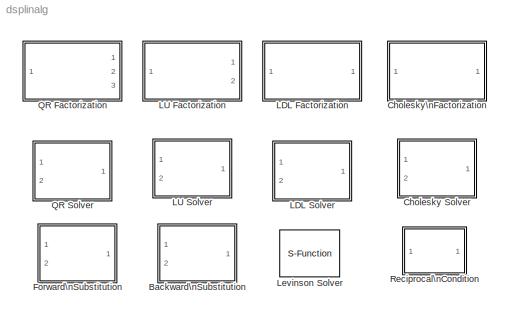
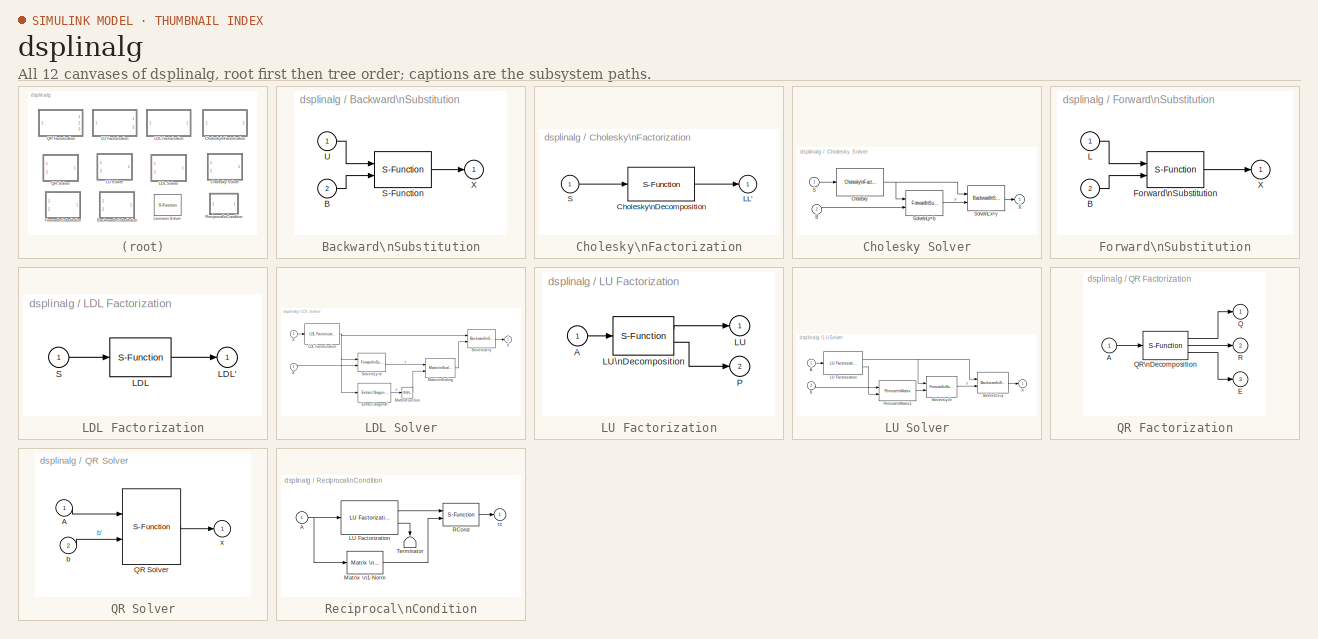
[diagram: thumbnail index - all 12 canvases of the model, root first then tree order]
MODEL dsplinalg
KIND library
BLOCK [SubSystem] Backward\nSubstitution
  MaskDescription = Solve UX=B where U is an upper (or unit-upper) triangular matrix.  U must be square.  B must have the same number of rows as U.
  MaskDisplay = plot(x,y); text(.4,0.9,'U X = B')
  MaskEnableString = on
  MaskHelp = web(dspbhelp);
  MaskIconFrame = on
  MaskIconOpaque = off
  MaskIconRotate = none
  MaskIconUnits = normalized
  MaskInitialization = x=[ 0.45 0.45 0.18 0.45 NaN 0.495 0.585 0.585 0.495 0.495 NaN 0.63 0.675 NaN 0.63 0.675 NaN 0.72 0.81 0.81 0.72 0.72 ];\ny=[ 0.1 0.7 0.7 0.1 NaN 0.1 0.1 0.7 0.7 0.1 NaN 0.35 0.35 NaN 0.45 0.45 NaN 0.1 0.1 0.7 0.7 0.1 ];\n
  MaskPromptString = Force input to be unit-upper triangular
  MaskStyleString = checkbox
  MaskTunableValueString = on
  MaskType = Backward Substitution
  MaskValueString = off
  MaskVariables = unit=@1;
  MaskVisibilityString = on
  Ports = [2, 1, 0, 0, 0]
  ShowPortLabels = on
  TreatAsAtomicUnit = off
BLOCK [Inport] Backward\nSubstitution/B
  Interpolate = on
  Port = 2
BLOCK [S-Function] Backward\nSubstitution/S-Function
  FunctionName = sdspbsub
  Parameters = unit
  PortCounts = []
  Ports = [2, 1, 0, 0, 0]
BLOCK [Inport] Backward\nSubstitution/U
  Interpolate = on
  Port = 1
BLOCK [Outport] Backward\nSubstitution/X
  InitialOutput = 0
  OutputWhenDisabled = held
  Port = 1
BLOCK [SubSystem] Cholesky Solver
  MaskDescription = Solve SX=B using Cholesky factorization.  S must be a square, symmetric (Hermitian) positive definite matrix.  B must have the same number of rows as S.
  MaskDisplay = plot(x,y);\ntext(.17,0.9,'SX=B (Chol)')
  MaskEnableString = on
  MaskHelp = web(dspbhelp);
  MaskIconFrame = on
  MaskIconOpaque = off
  MaskIconRotate = none
  MaskIconUnits = normalized
  MaskInitialization = x=[ 0.135 0.475 .475 0.135 0.135 NaN .135 .475 NaN 0.55 0.64 0.64 0.55 0.55 NaN 0.685 0.73 NaN 0.685 0.73 NaN 0.775 0.865 0.865 0.775 0.775 ];\ny=[ 0.1 0.1 0.7 0.7 .1 NaN .7 .1 NaN 0.1 0.1 0.7 0.7 0.1 NaN 0.35 0.35 NaN 0.45 0.45 NaN 0.1 0.1 0.7 0.7 0.1 ];\nset_param([gcb '/Cholesky'],'errmode',errmode);\n\n
  MaskPromptString = Invalid input matrix:
  MaskSelfModifiable = on
  MaskStyleString = popup(Ignore|Warning|Error)
  MaskTunableValueString = on
  MaskType = Cholesky Solver
  MaskValueString = Warning
  MaskVariables = errmode=&1;
  MaskVisibilityString = on
  Ports = [2, 1, 0, 0, 0]
  ShowPortLabels = on
  TreatAsAtomicUnit = off
BLOCK [Inport] Cholesky Solver/B
  Interpolate = on
  Port = 2
BLOCK [Reference] Cholesky Solver/Cholesky  REF=dsplinalg/Cholesky\nFactorization
  Ports = [1, 1, 0, 0, 0]
  SourceBlock = dsplinalg/Cholesky\nFactorization
  SourceType = Cholesky Factorization
  errmode = Warning
BLOCK [Inport] Cholesky Solver/S
  Interpolate = on
  Port = 1
BLOCK [Reference] Cholesky Solver/Solve\nL'x=y  REF=dsplinalg/Backward\nSubstitution
  Ports = [2, 1, 0, 0, 0]
  SourceBlock = dsplinalg/Backward\nSubstitution
  SourceType = Backward Substitution
  unit = off
BLOCK [Reference] Cholesky Solver/Solve\nLy=b  REF=dsplinalg/Forward\nSubstitution
  Ports = [2, 1, 0, 0, 0]
  SourceBlock = dsplinalg/Forward\nSubstitution
  SourceType = Forward Substitution
  unit = off
BLOCK [Outport] Cholesky Solver/X
  InitialOutput = 0
  OutputWhenDisabled = held
  Port = 1
BLOCK [SubSystem] Cholesky\nFactorization
  MaskDescription = Uses only the diagonal and the upper triangle of S.  The lower triangle is assumed to be the (complex conjugate) transpose of the upper.  Only for use with a symmetric (Hermitian) positive definite input matrix S.  Input must be square.
  MaskDisplay = plot(x,y);\ntext(.3,0.9,'S = LL''')
  MaskEnableString = on
  MaskHelp = web(dspbhelp);
  MaskIconFrame = on
  MaskIconOpaque = off
  MaskIconRotate = none
  MaskIconUnits = normalized
  MaskInitialization = x=[0.5336 0.782 0.5336 0.5336 NaN 0.8234 0.575 0.8234 0.8234 NaN 0.1104 0.414 0.414 0.1104 0.1104 NaN 0.1104 0.414 NaN 0.483 0.483 0.437 0.437 0.483 0.483 0.5198 0.483];\ny=[0.142 0.142 0.694 0.142 NaN 0.142 0.694 0.694 0.142 NaN 0.142 0.142 0.694 0.694 0.142 NaN 0.694 0.142 NaN 0.3582 0.395 0.395 0.441 0.441 0.4778 0.418 0.3582];\n
  MaskPromptString = Invalid input matrix:
  MaskStyleString = popup(Ignore|Warning|Error)
  MaskTunableValueString = on
  MaskType = Cholesky Factorization
  MaskValueString = Warning
  MaskVariables = errmode=@1;
  MaskVisibilityString = on
  Ports = [1, 1, 0, 0, 0]
  ShowPortLabels = on
  TreatAsAtomicUnit = off
BLOCK [S-Function] Cholesky\nFactorization/Cholesky\nDecomposition
  FunctionName = sdspchol
  Parameters = errmode
  PortCounts = []
  Ports = [1, 1, 0, 0, 0]
BLOCK [Outport] Cholesky\nFactorization/LL'
  InitialOutput = 0
  OutputWhenDisabled = held
  Port = 1
BLOCK [Inport] Cholesky\nFactorization/S
  Interpolate = on
  Port = 1
BLOCK [SubSystem] Forward\nSubstitution
  MaskDescription = Solve LX=B where L is a lower (or unit-lower) triangular matrix.  L must be square.  B must have the same number of rows as L.
  MaskDisplay = plot(x,y); text(.4,0.9,'L X = B')
  MaskEnableString = on
  MaskHelp = web(dspbhelp);
  MaskIconFrame = on
  MaskIconOpaque = off
  MaskIconRotate = none
  MaskIconUnits = normalized
  MaskInitialization = x=[ 0.18 0.45 0.18 0.18 NaN 0.495 0.585 0.585 0.495 0.495 NaN 0.63 0.675 NaN 0.63 0.675 NaN 0.72 0.81 0.81 0.72 0.72 ];\ny=[ 0.1 0.1 0.7 0.1 NaN 0.1 0.1 0.7 0.7 0.1 NaN 0.35 0.35 NaN 0.45 0.45 NaN 0.1 0.1 0.7 0.7 0.1 ];\n
  MaskPromptString = Force input to be unit-lower triangular
  MaskStyleString = checkbox
  MaskTunableValueString = on
  MaskType = Forward Substitution
  MaskValueString = off
  MaskVariables = unit=@1;
  MaskVisibilityString = on
  Ports = [2, 1, 0, 0, 0]
  ShowPortLabels = on
  TreatAsAtomicUnit = off
BLOCK [Inport] Forward\nSubstitution/B
  Interpolate = on
  Port = 2
BLOCK [S-Function] Forward\nSubstitution/Forward\nSubstitution
  FunctionName = sdspfsub
  Parameters = unit
  PortCounts = []
  Ports = [2, 1, 0, 0, 0]
BLOCK [Inport] Forward\nSubstitution/L
  Interpolate = on
  Port = 1
BLOCK [Outport] Forward\nSubstitution/X
  InitialOutput = 0
  OutputWhenDisabled = held
  Port = 1
BLOCK [SubSystem] LDL Factorization
  MaskDescription = Uses only the diagonal and the upper triangle of S.  Only for use with a symmetric (Hermitian) positive definite input matrix S.  Input must be square.  Stores L (a unit-lower triangle), U (a unit-upper triangle) and D (a diagonal matrix) in the output matrix.
  MaskDisplay = plot(x,y);\ntext(.25,0.9,'S = L D L''')
  MaskHelp = web(dspbhelp);
  MaskIconFrame = on
  MaskIconOpaque = off
  MaskIconRotate = none
  MaskIconUnits = normalized
  MaskInitialization = x=[0.47991 0.64515 0.47991 0.47991 NaN 0.74919 0.58395 0.74919 0.74919 NaN 0.694875 0.52275 NaN 0.1173 0.36975 0.36975 0.1173 0.1173 NaN 0.1173 0.36975 NaN 0.427125 0.427125 0.388875 0.388875 0.427125 0.427125 0.457725 0.427125];\ny=[0.185 0.185 0.695 0.185 NaN 0.185 0.695 0.695 0.185 NaN 0.185 0.695 NaN 0.185 0.185 0.695 0.695 0.185 NaN 0.695 0.185 NaN 0.38475 0.41875 0.41875 0.46125 0.46125 0.49...<+22ch>
  MaskType = LDL Factorization
  Ports = [1, 1, 0, 0, 0]
  ShowPortLabels = on
  TreatAsAtomicUnit = off
BLOCK [S-Function] LDL Factorization/LDL
  FunctionName = sdspldl
  PortCounts = []
  Ports = [1, 1, 0, 0, 0]
BLOCK [Outport] LDL Factorization/LDL'
  InitialOutput = 0
  OutputWhenDisabled = held
  Port = 1
BLOCK [Inport] LDL Factorization/S
  Interpolate = on
  Port = 1
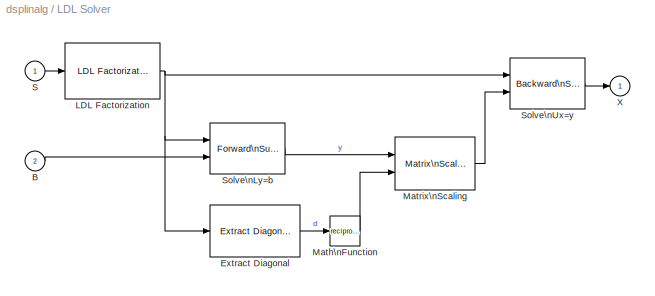
BLOCK [SubSystem] LDL Solver
  MaskDescription = Solve Sx=b using LDL' factorization.  Only for use with a symmetric (Hermitian) positive definite input matrix S.  Input must be square.
  MaskDisplay = plot(x,y);\ntext(.25,0.9,'Sx=b (LDL'')')
  MaskHelp = web(dspbhelp);
  MaskIconFrame = on
  MaskIconOpaque = off
  MaskIconRotate = none
  MaskIconUnits = normalized
  MaskInitialization = Bcols=1;\nx=[ 0.135 0.475 .475 0.135 0.135 NaN .135 .475 NaN 0.55 0.64 0.64 0.55 0.55 NaN 0.685 0.73 NaN 0.685 0.73 NaN 0.775 0.865 0.865 0.775 0.775 ];\ny=[ 0.1 0.1 0.7 0.7 0.1 NaN .7 .1 NaN 0.1 0.1 0.7 0.7 0.1 NaN 0.35 0.35 NaN 0.45 0.45 NaN 0.1 0.1 0.7 0.7 0.1 ];\n
  MaskType = LDL Solver
  Ports = [2, 1, 0, 0, 0]
  ShowPortLabels = on
  TreatAsAtomicUnit = off
BLOCK [Inport] LDL Solver/B
  Interpolate = on
  Port = 2
BLOCK [Reference] LDL Solver/Extract Diagonal  REF=dspmtrx2/Extract Diagonal
  Ports = [1, 1, 0, 0, 0]
  SourceBlock = dspmtrx2/Extract Diagonal
  SourceType = Extract Diagonal
  ncols = -1
BLOCK [Reference] LDL Solver/LDL Factorization  REF=dsplinalg/LDL Factorization
  Ports = [1, 1, 0, 0, 0]
  SourceBlock = dsplinalg/LDL Factorization
  SourceType = LDL Factorization
BLOCK [Math] LDL Solver/Math\nFunction
  Operator = reciprocal
  OutputSignalType = auto
  Ports = [1, 1, 0, 0, 0]
BLOCK [Reference] LDL Solver/Matrix\nScaling  REF=dspmtrx2/Matrix\nScaling
  Ports = [2, 1, 0, 0, 0]
  SourceBlock = dspmtrx2/Matrix\nScaling
  SourceType = Matrix Scaling
  cols = Bcols
  mode = Scale Rows (D*A)
BLOCK [Inport] LDL Solver/S
  Interpolate = on
  Port = 1
BLOCK [Reference] LDL Solver/Solve\nLy=b  REF=dsplinalg/Forward\nSubstitution
  Ports = [2, 1, 0, 0, 0]
  SourceBlock = dsplinalg/Forward\nSubstitution
  SourceType = Forward Substitution
  unit = on
BLOCK [Reference] LDL Solver/Solve\nUx=y  REF=dsplinalg/Backward\nSubstitution
  Ports = [2, 1, 0, 0, 0]
  SourceBlock = dsplinalg/Backward\nSubstitution
  SourceType = Backward Substitution
  unit = on
BLOCK [Outport] LDL Solver/X
  InitialOutput = 0
  OutputWhenDisabled = held
  Port = 1
BLOCK [SubSystem] LU Factorization
  MaskDescription = LU factorization with row pivoting.  Stores L (a unit-lower triangular matrix) in the lower triangle and U in the upper triangle of the output matrix.  Permutation vector P is output separately.  Input must be square.
  MaskDisplay = plot(x,y); text(.25,0.9,'P A = L U')
  MaskHelp = web(dspbhelp);
  MaskIconFrame = on
  MaskIconOpaque = off
  MaskIconRotate = none
  MaskIconUnits = normalized
  MaskInitialization = x=[ 0.58 0.85 0.58 0.58 NaN 0.895 0.625 0.895 0.895 NaN 0.12 0.45 0.45 0.12 0.12 NaN 0.525 0.525 0.475 0.475 0.525 0.525 0.565 0.525 ];\ny=[ 0.1 0.1 0.7 0.1 NaN 0.1 0.7 0.7 0.1 NaN 0.1 0.1 0.7 0.7 0.1 NaN 0.335 0.375 0.375 0.425 0.425 0.465 0.4 0.335 ];\n
  MaskType = LU Factorization
  Ports = [1, 2, 0, 0, 0]
  ShowPortLabels = on
  TreatAsAtomicUnit = off
BLOCK [Inport] LU Factorization/A
  Interpolate = on
  Port = 1
BLOCK [Outport] LU Factorization/LU
  InitialOutput = 0
  OutputWhenDisabled = held
  Port = 1
BLOCK [S-Function] LU Factorization/LU\nDecomposition
  FunctionName = sdsplu
  PortCounts = []
  Ports = [1, 2, 0, 0, 0]
BLOCK [Outport] LU Factorization/P
  InitialOutput = 0
  OutputWhenDisabled = held
  Port = 2
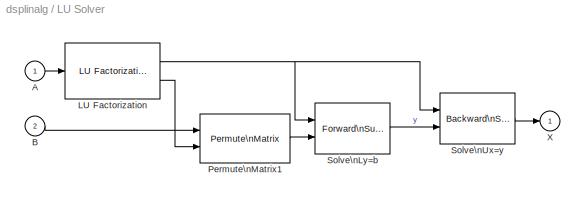
BLOCK [SubSystem] LU Solver
  MaskDescription = Solve Ax=b using LU decomposition.  Input must be square.
  MaskDisplay = plot(x,y);\ntext(.3,0.9,'Ax=b (LU)')
  MaskHelp = web(dspbhelp);
  MaskIconFrame = on
  MaskIconOpaque = off
  MaskIconRotate = none
  MaskIconUnits = normalized
  MaskInitialization = Bcols=1;\nx=[ 0.135 .475 0.475 0.135 .135 NaN 0.55 0.64 0.64 0.55 0.55 NaN 0.685 0.73 NaN 0.685 0.73 NaN 0.775 0.865 0.865 0.775 0.775 ];\ny=[ 0.1 0.1 0.7 0.7 0.1 NaN 0.1 0.1 0.7 0.7 0.1 NaN 0.35 0.35 NaN 0.45 0.45 NaN 0.1 0.1 0.7 0.7 0.1 ];\n\n
  MaskType = LU Solver
  Ports = [2, 1, 0, 0, 0]
  ShowPortLabels = on
  TreatAsAtomicUnit = off
BLOCK [Inport] LU Solver/A
  Interpolate = on
  Port = 1
BLOCK [Inport] LU Solver/B
  Interpolate = on
  Port = 2
BLOCK [Reference] LU Solver/LU Factorization  REF=dsplinalg/LU Factorization
  Ports = [1, 2, 0, 0, 0]
  SourceBlock = dsplinalg/LU Factorization
  SourceType = LU Factorization
BLOCK [Reference] LU Solver/Permute\nMatrix1  REF=dspmtrx2/Permute\nMatrix
  Ports = [2, 1, 0, 0, 0]
  SourceBlock = dspmtrx2/Permute\nMatrix
  SourceType = Permute Matrix
  cols = Bcols
  errmode = Clip Index
  mode = Rows
BLOCK [Reference] LU Solver/Solve\nLy=b  REF=dsplinalg/Forward\nSubstitution
  Ports = [2, 1, 0, 0, 0]
  SourceBlock = dsplinalg/Forward\nSubstitution
  SourceType = Forward Substitution
  unit = on
BLOCK [Reference] LU Solver/Solve\nUx=y  REF=dsplinalg/Backward\nSubstitution
  Ports = [2, 1, 0, 0, 0]
  SourceBlock = dsplinalg/Backward\nSubstitution
  SourceType = Backward Substitution
  unit = off
BLOCK [Outport] LU Solver/X
  InitialOutput = 0
  OutputWhenDisabled = held
  Port = 1
BLOCK [S-Function] Levinson Solver
  FunctionName = sdsplevdurb
  MaskCallbackString = |
  MaskDescription = Solve Hermitian Toeplitz system of equations using the Levinson-Durbin recursion.  Input is typically a vector of autocorrelation coefficients with lag 0 as the first element.  Outputs polynomial coefficients A and/or reflection coefficients K.
  MaskDisplay = disp('L-D');\nport_label('input',s.i1,s.i1s);\nport_label('input',s.i2,s.i2s);\nport_label('output',s.o1,s.o1s);\nport_label('output',s.o2,s.o2s);
  MaskEnableString = on,on
  MaskHelp = web(dspbhelp);
  MaskIconFrame = on
  MaskIconOpaque = on
  MaskIconRotate = none
  MaskIconUnits = autoscale
  MaskInitialization = s = dspblklevdurb(fcn);
  MaskPromptString = Output(s):|Special-case handling of zero input
  MaskSelfModifiable = on
  MaskStyleString = popup(A and K|A|K),checkbox
  MaskTunableValueString = off,on
  MaskType = Levinson Solver
  MaskValueString = A and K|on
  MaskVariables = fcn=@1;otype=@2;
  MaskVisibilityString = on,on
  Parameters = fcn,otype
  PortCounts = []
  Ports = [1, 2, 0, 0, 0]
BLOCK [SubSystem] QR Factorization
  MaskDescription = QR factorization with column pivoting.  Q is a unitary matrix, R is an upper triangular matrix (U), and E is a permutation vector such that A(:,E) = Q*R.
  MaskDisplay = plot(x,y);\ntext(.2,0.9,'A(:,E) = Q R')
  MaskEnableString = on
  MaskHelp = web(dspbhelp);
  MaskIconFrame = on
  MaskIconOpaque = off
  MaskIconRotate = none
  MaskIconUnits = normalized
  MaskInitialization = x=[ 0.4785 0.6699 0.6699 0.4785 0.4785 NaN 0.875568 0.70644 0.875568 0.875568 NaN 0.12006 0.348 0.348 0.12006 0.12006 NaN 0.424125 0.424125 0.384975 0.384975 0.424125 0.424125 0.455445 0.424125 ];\ny=[ 0.1 0.1 .7 0.7 0.1 NaN 0.1 0.7 0.7 0.1 NaN 0.1 0.1 0.7 0.7 0.1 NaN 0.335 0.375 0.375 0.425 0.425 0.465 0.4 0.335 ];\n\n
  MaskPromptString = Columns in A:
  MaskStyleString = edit
  MaskTunableValueString = off
  MaskType = QR Factorization
  MaskValueString = 5
  MaskVariables = Acols=@1;
  MaskVisibilityString = on
  Ports = [1, 3, 0, 0, 0]
  ShowPortLabels = on
  TreatAsAtomicUnit = off
BLOCK [Inport] QR Factorization/A
  Interpolate = on
  Port = 1
BLOCK [Outport] QR Factorization/E
  InitialOutput = 0
  OutputWhenDisabled = held
  Port = 3
BLOCK [Outport] QR Factorization/Q
  InitialOutput = 0
  OutputWhenDisabled = held
  Port = 1
BLOCK [S-Function] QR Factorization/QR\nDecomposition
  FunctionName = sdspqre
  Parameters = Acols
  PortCounts = []
  Ports = [1, 3, 0, 0, 0]
BLOCK [Outport] QR Factorization/R
  InitialOutput = 0
  OutputWhenDisabled = held
  Port = 2
BLOCK [SubSystem] QR Solver
  MaskDescription = Solve Ax=b using QR factorization.
  MaskDisplay = plot(x,y);\ntext(.25,0.9,'Ax=b (QR)')
  MaskHelp = web(dspbhelp);
  MaskIconFrame = on
  MaskIconOpaque = off
  MaskIconRotate = none
  MaskIconUnits = normalized
  MaskInitialization = x=[ 0.135 0.475 .475 0.135 0.135 NaN 0.55 0.64 0.64 0.55 0.55 NaN 0.685 0.73 NaN 0.685 0.73 NaN 0.775 0.865 0.865 0.775 0.775 ];\ny=[ 0.1 0.1 0.7 0.7 0.1 NaN 0.1 0.1 0.7 0.7 0.1 NaN 0.35 0.35 NaN 0.45 0.45 NaN 0.1 0.1 0.7 0.7 0.1 ];\n\n
  MaskType = QR Solver
  Ports = [2, 1, 0, 0, 0]
  ShowPortLabels = on
  TreatAsAtomicUnit = off
BLOCK [Inport] QR Solver/A
  Interpolate = on
  Port = 1
BLOCK [S-Function] QR Solver/QR Solver
  FunctionName = sdspqreslv
  PortCounts = []
  Ports = [2, 1, 0, 0, 0]
BLOCK [Inport] QR Solver/b
  Interpolate = on
  Port = 2
BLOCK [Outport] QR Solver/x
  InitialOutput = 0
  OutputWhenDisabled = held
  Port = 1
BLOCK [SubSystem] Reciprocal\nCondition
  MaskDescription = Estimates the reciprocal of the condition of a square input matrix in the 1-norm.  If input is well conditioned, the output is near 1.0.  If input is badly conditioned, output is near 0.0.\n
  MaskDisplay = disp('RCond')
  MaskHelp = web(dspbhelp);
  MaskIconFrame = on
  MaskIconOpaque = on
  MaskIconRotate = none
  MaskIconUnits = normalized
  MaskType = Reciprocal Condition
  Ports = [1, 1, 0, 0, 0]
  ShowPortLabels = on
  TreatAsAtomicUnit = off
BLOCK [Outport] Reciprocal\nCondition/ rc
  InitialOutput = 0
  OutputWhenDisabled = held
  Port = 1
BLOCK [Inport] Reciprocal\nCondition/A
  Interpolate = on
  Port = 1
BLOCK [Reference] Reciprocal\nCondition/LU Factorization  REF=dsplinalg/LU Factorization
  Ports = [1, 2, 0, 0, 0]
  SourceBlock = dsplinalg/LU Factorization
  SourceType = LU Factorization
BLOCK [Reference] Reciprocal\nCondition/Matrix \n1-Norm  REF=dspmtrx2/Matrix \n1-Norm
  Cols = -1
  Ports = [1, 1, 0, 0, 0]
  SourceBlock = dspmtrx2/Matrix \n1-Norm
  SourceType = Matrix 1-Norm
BLOCK [S-Function] Reciprocal\nCondition/RCond
  FunctionName = sdsprcond
  PortCounts = []
  Ports = [2, 1, 0, 0, 0]
BLOCK [Terminator] Reciprocal\nCondition/Terminator
LINE Backward\nSubstitution/B:1 -> Backward\nSubstitution/S-Function:2
LINE Backward\nSubstitution/S-Function:1 -> Backward\nSubstitution/X:1
LINE Backward\nSubstitution/U:1 -> Backward\nSubstitution/S-Function:1
LINE Cholesky Solver/B:1 -> Cholesky Solver/Solve\nLy=b:2
NET Cholesky Solver/Cholesky:1 -> Cholesky Solver/Solve\nL'x=y:1, Cholesky Solver/Solve\nLy=b:1
LINE Cholesky Solver/S:1 -> Cholesky Solver/Cholesky:1
LINE Cholesky Solver/Solve\nL'x=y:1 -> Cholesky Solver/X:1
LINE Cholesky Solver/Solve\nLy=b:1 -> Cholesky Solver/Solve\nL'x=y:2
LINE Cholesky\nFactorization/Cholesky\nDecomposition:1 -> Cholesky\nFactorization/LL':1
LINE Cholesky\nFactorization/S:1 -> Cholesky\nFactorization/Cholesky\nDecomposition:1
LINE Forward\nSubstitution/B:1 -> Forward\nSubstitution/Forward\nSubstitution:2
LINE Forward\nSubstitution/Forward\nSubstitution:1 -> Forward\nSubstitution/X:1
LINE Forward\nSubstitution/L:1 -> Forward\nSubstitution/Forward\nSubstitution:1
LINE LDL Factorization/LDL:1 -> LDL Factorization/LDL':1
LINE LDL Factorization/S:1 -> LDL Factorization/LDL:1
LINE LDL Solver/B:1 -> LDL Solver/Solve\nLy=b:2
LINE LDL Solver/Extract Diagonal:1 -> LDL Solver/Math\nFunction:1
NET LDL Solver/LDL Factorization:1 -> LDL Solver/Extract Diagonal:1, LDL Solver/Solve\nLy=b:1, LDL Solver/Solve\nUx=y:1
LINE LDL Solver/Math\nFunction:1 -> LDL Solver/Matrix\nScaling:2
LINE LDL Solver/Matrix\nScaling:1 -> LDL Solver/Solve\nUx=y:2
LINE LDL Solver/S:1 -> LDL Solver/LDL Factorization:1
LINE LDL Solver/Solve\nLy=b:1 -> LDL Solver/Matrix\nScaling:1
LINE LDL Solver/Solve\nUx=y:1 -> LDL Solver/X:1
LINE LU Factorization/A:1 -> LU Factorization/LU\nDecomposition:1
LINE LU Factorization/LU\nDecomposition:1 -> LU Factorization/LU:1
LINE LU Factorization/LU\nDecomposition:2 -> LU Factorization/P:1
LINE LU Solver/A:1 -> LU Solver/LU Factorization:1
LINE LU Solver/B:1 -> LU Solver/Permute\nMatrix1:1
NET LU Solver/LU Factorization:1 -> LU Solver/Solve\nLy=b:1, LU Solver/Solve\nUx=y:1
LINE LU Solver/LU Factorization:2 -> LU Solver/Permute\nMatrix1:2
LINE LU Solver/Permute\nMatrix1:1 -> LU Solver/Solve\nLy=b:2
LINE LU Solver/Solve\nLy=b:1 -> LU Solver/Solve\nUx=y:2
LINE LU Solver/Solve\nUx=y:1 -> LU Solver/X:1
LINE QR Factorization/A:1 -> QR Factorization/QR\nDecomposition:1
LINE QR Factorization/QR\nDecomposition:1 -> QR Factorization/Q:1
LINE QR Factorization/QR\nDecomposition:2 -> QR Factorization/R:1
LINE QR Factorization/QR\nDecomposition:3 -> QR Factorization/E:1
LINE QR Solver/A:1 -> QR Solver/QR Solver:1
LINE QR Solver/QR Solver:1 -> QR Solver/x:1
LINE QR Solver/b:1 -> QR Solver/QR Solver:2
NET Reciprocal\nCondition/A:1 -> Reciprocal\nCondition/LU Factorization:1, Reciprocal\nCondition/Matrix \n1-Norm:1
LINE Reciprocal\nCondition/LU Factorization:1 -> Reciprocal\nCondition/RCond:1
LINE Reciprocal\nCondition/LU Factorization:2 -> Reciprocal\nCondition/Terminator:1
LINE Reciprocal\nCondition/Matrix \n1-Norm:1 -> Reciprocal\nCondition/RCond:2
LINE Reciprocal\nCondition/RCond:1 -> Reciprocal\nCondition/ rc:1
note: NET lines group one-source signal fan-out (src -> all destinations, sorted); 1:1 wires keep LINE
